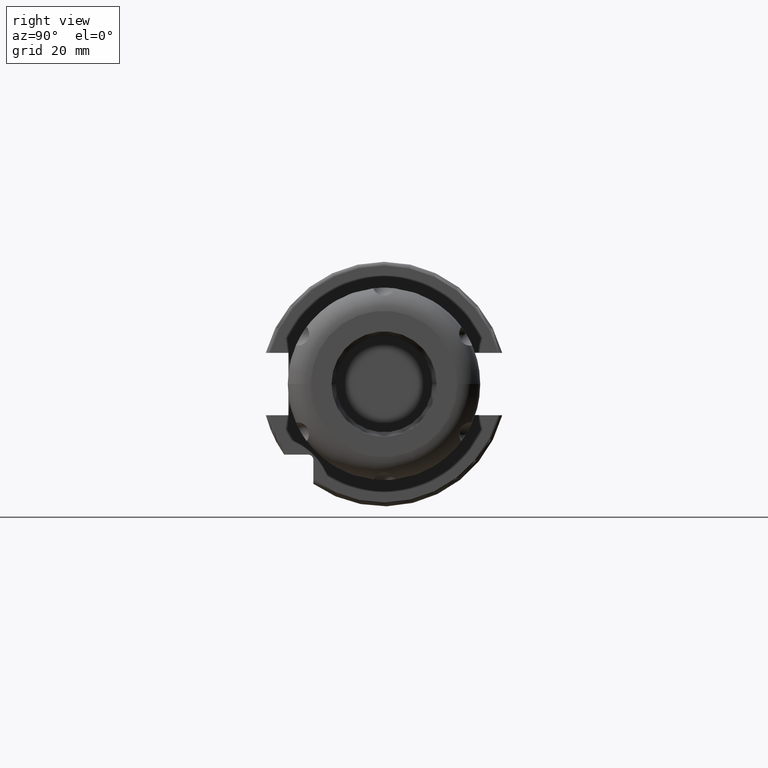
[diagram: clean part render]
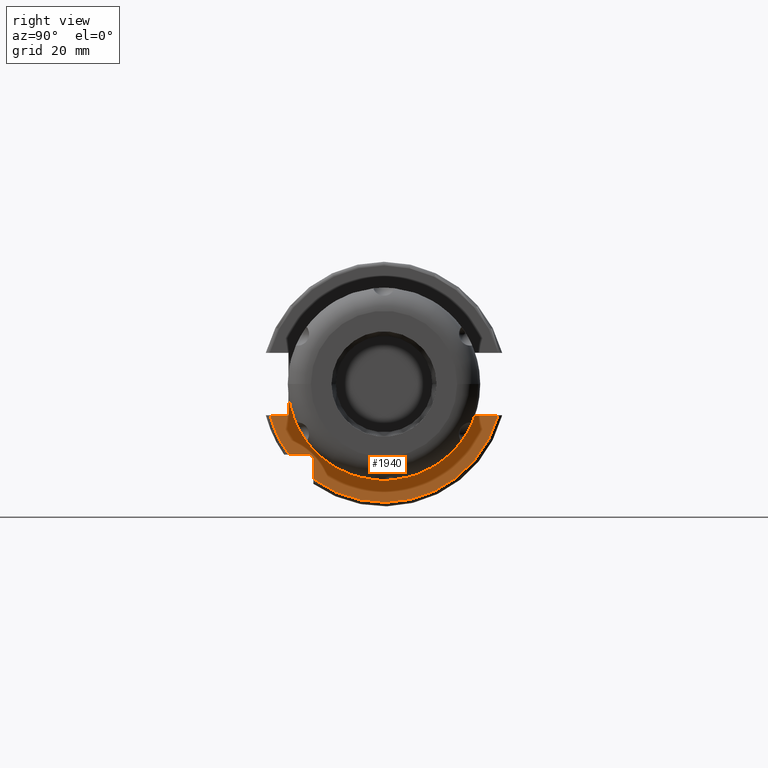
[diagram: same view with one face highlighted and labeled with its STEP entity id]
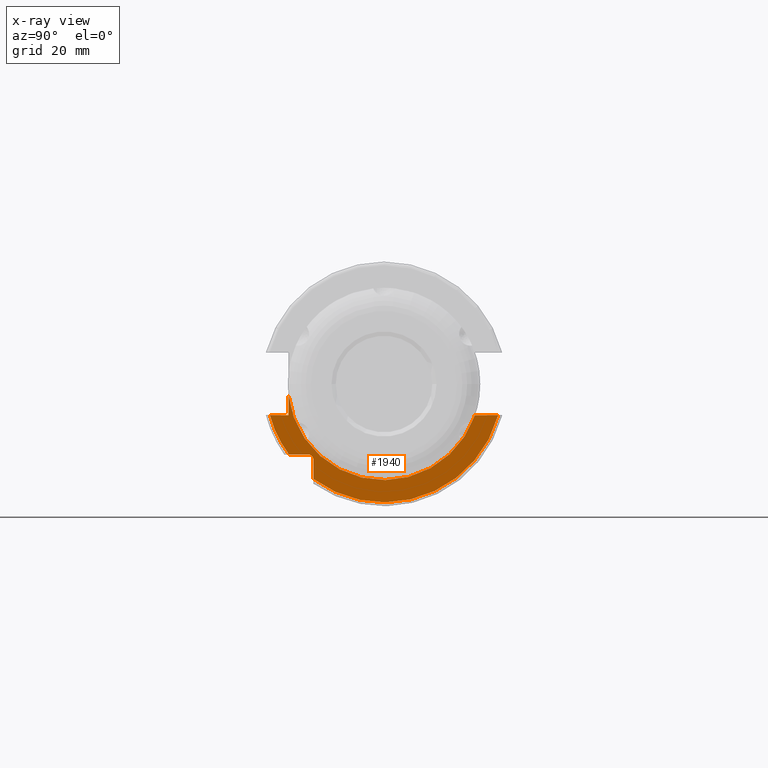
[diagram: x-ray of the same camera — body ghosted, the highlighted face saturated]
A machine part, right view. The second image highlights one B-rep face of the part: STEP entity #1940.
The next image is the same camera in x-ray: the body ghosted, the highlighted face saturated — about 2% of this face is hidden behind the body in this view.
In plain terms, the highlighted planar face has unit normal (1, 0, 0).
Its self-contained STEP definition (entity closure, byte-faithful):
#198=CARTESIAN_POINT('',(1.905E1,0.E0,0.E0));
#199=DIRECTION('',(1.E0,0.E0,0.E0));
#200=DIRECTION('',(0.E0,-9.939923555914E-1,-1.094495181622E-1));
#201=AXIS2_PLACEMENT_3D('',#198,#199,#200);
#203=DIRECTION('',(0.E0,-1.E0,0.E0));
#204=VECTOR('',#203,6.025523739021E0);
#205=CARTESIAN_POINT('',(1.905E1,2.967695075728E1,-8.1E0));
#206=LINE('',#205,#204);
#207=DIRECTION('',(0.E0,0.E0,1.E0));
#208=VECTOR('',#207,4.990259339464E0);
#209=CARTESIAN_POINT('',(1.905E1,-1.835E1,-2.469025933946E1));
#210=LINE('',#209,#208);
#211=DIRECTION('',(0.E0,-1.E0,0.E0));
#212=VECTOR('',#211,4.990259339464E0);
#213=CARTESIAN_POINT('',(1.905E1,-1.97E1,-1.835E1));
#214=LINE('',#213,#212);
#215=DIRECTION('',(0.E0,1.E0,0.E0));
#216=VECTOR('',#215,4.826950757280E0);
#217=CARTESIAN_POINT('',(1.905E1,-2.967695075728E1,-8.1E0));
#218=LINE('',#217,#216);
#219=DIRECTION('',(0.E0,8.785734347711E-7,9.999999999996E-1));
#220=VECTOR('',#219,5.364869646354E0);
#221=CARTESIAN_POINT('',(1.905E1,-2.485E1,-8.1E0));
#222=LINE('',#221,#220);
#566=CARTESIAN_POINT('',(1.905E1,-1.97E1,-1.97E1));
#567=DIRECTION('',(-1.E0,0.E0,0.E0));
#568=DIRECTION('',(0.E0,0.E0,1.E0));
#569=AXIS2_PLACEMENT_3D('',#566,#567,#568);
#589=CARTESIAN_POINT('',(1.905E1,2.967695075728E1,-8.1E0));
#602=CARTESIAN_POINT('',(1.905E1,0.E0,0.E0));
#603=DIRECTION('',(-1.E0,0.E0,0.E0));
#604=DIRECTION('',(0.E0,9.647119303464E-1,-2.633075985372E-1));
#605=AXIS2_PLACEMENT_3D('',#602,#603,#604);
#618=CARTESIAN_POINT('',(1.905E1,0.E0,0.E0));
#619=DIRECTION('',(-1.E0,0.E0,0.E0));
#620=DIRECTION('',(0.E0,-8.026089992512E-1,-5.965054855750E-1));
#621=AXIS2_PLACEMENT_3D('',#618,#619,#620);
#1449=CARTESIAN_POINT('',(1.905E1,-2.967695075728E1,-8.1E0));
#1450=CARTESIAN_POINT('',(1.905E1,-2.485E1,-8.1E0));
#1451=VERTEX_POINT('',#1449);
#1452=VERTEX_POINT('',#1450);
#1495=VERTEX_POINT('',#589);
#1504=CARTESIAN_POINT('',(1.905E1,-1.835E1,-2.469025933946E1));
#1505=VERTEX_POINT('',#1504);
#1512=CARTESIAN_POINT('',(1.905E1,-1.97E1,-1.835E1));
#1513=CARTESIAN_POINT('',(1.905E1,-2.469025933946E1,-1.835E1));
#1514=VERTEX_POINT('',#1512);
#1515=VERTEX_POINT('',#1513);
#1516=CARTESIAN_POINT('',(1.905E1,-1.835E1,-1.97E1));
#1517=VERTEX_POINT('',#1516);
#1524=CARTESIAN_POINT('',(1.905E1,-2.484980888978E1,-2.736237954056E0));
#1525=CARTESIAN_POINT('',(1.905E1,2.365142701826E1,-8.1E0));
#1526=VERTEX_POINT('',#1524);
#1527=VERTEX_POINT('',#1525);
#1916=CARTESIAN_POINT('',(1.905E1,0.E0,0.E0));
#1917=DIRECTION('',(1.E0,0.E0,0.E0));
#1918=DIRECTION('',(0.E0,-1.E0,0.E0));
#1919=AXIS2_PLACEMENT_3D('',#1916,#1917,#1918);
#1920=PLANE('',#1919);
#1922=ORIENTED_EDGE('',*,*,#1921,.T.);
#1923=ORIENTED_EDGE('',*,*,#1882,.F.);
#1925=ORIENTED_EDGE('',*,*,#1924,.T.);
#1927=ORIENTED_EDGE('',*,*,#1926,.T.);
#1929=ORIENTED_EDGE('',*,*,#1928,.F.);
#1931=ORIENTED_EDGE('',*,*,#1930,.T.);
#1933=ORIENTED_EDGE('',*,*,#1932,.T.);
#1935=ORIENTED_EDGE('',*,*,#1934,.T.);
#1937=ORIENTED_EDGE('',*,*,#1936,.T.);
#1938=EDGE_LOOP('',(#1922,#1923,#1925,#1927,#1929,#1931,#1933,#1935,#1937));
#1939=FACE_OUTER_BOUND('',#1938,.F.);
#1940=ADVANCED_FACE('',(#1939),#1920,.T.);
#202=CIRCLE('',#201,2.5E1);
#570=CIRCLE('',#569,1.35E0);
#606=CIRCLE('',#605,3.07625E1);
#622=CIRCLE('',#621,3.07625E1);
#1882=EDGE_CURVE('',#1495,#1527,#206,.T.);
#1921=EDGE_CURVE('',#1526,#1527,#202,.T.);
#1924=EDGE_CURVE('',#1495,#1505,#606,.T.);
#1926=EDGE_CURVE('',#1505,#1517,#210,.T.);
#1928=EDGE_CURVE('',#1514,#1517,#570,.T.);
#1930=EDGE_CURVE('',#1514,#1515,#214,.T.);
#1932=EDGE_CURVE('',#1515,#1451,#622,.T.);
#1934=EDGE_CURVE('',#1451,#1452,#218,.T.);
#1936=EDGE_CURVE('',#1452,#1526,#222,.T.);